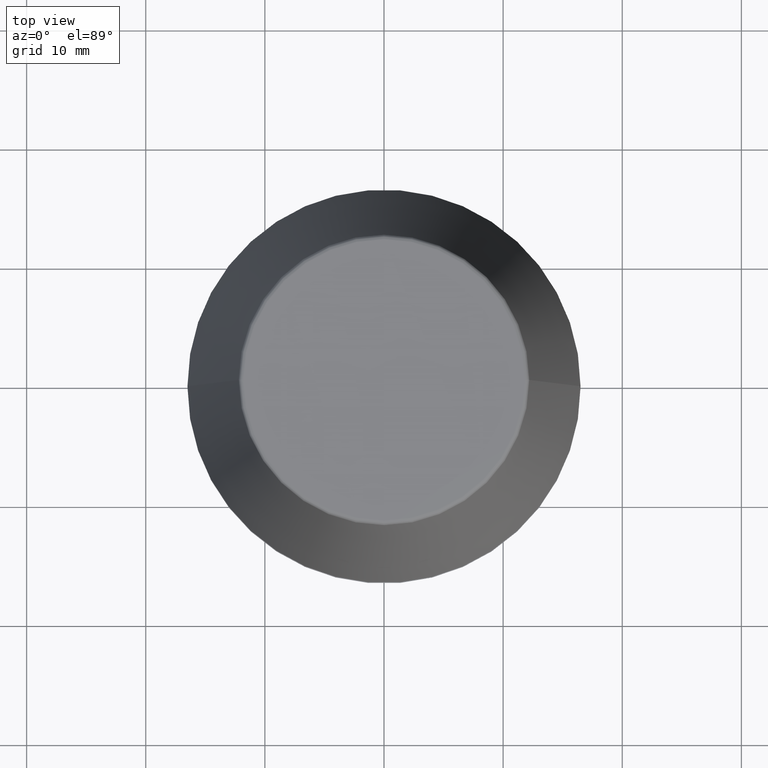
[diagram: clean part render]
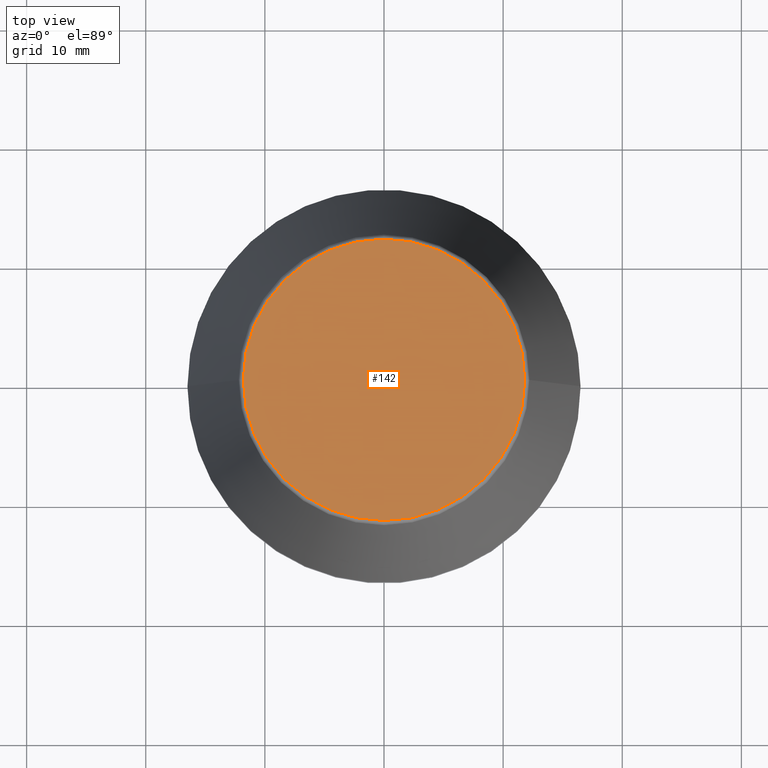
[diagram: same view with one face highlighted and labeled with its STEP entity id]
A machine part, top view. The second image highlights one B-rep face of the part: STEP entity #142.
In plain terms, the highlighted planar face has unit normal (0, 0, -1).
Its self-contained STEP definition (entity closure, byte-faithful):
#4 = DIRECTION ( 'NONE',  ( -1.000000000000000000, 0.0000000000000000000, -0.0000000000000000000 ) ) ;
#7 = CIRCLE ( 'NONE', #129, 11.80989888411031400 ) ;
#8 = CARTESIAN_POINT ( 'NONE',  ( -11.80989888411031400, 1.470550059081603400E-015, 40.00000000000000700 ) ) ;
#15 = EDGE_CURVE ( 'NONE', #84, #336, #85, .T. ) ;
#84 = VERTEX_POINT ( 'NONE', #8 ) ;
#85 = CIRCLE ( 'NONE', #170, 11.80989888411031400 ) ;
#91 = FACE_OUTER_BOUND ( 'NONE', #188, .T. ) ;
#114 = CARTESIAN_POINT ( 'NONE',  ( 11.80989888411031400, 0.0000000000000000000, 40.00000000000000700 ) ) ;
#129 = AXIS2_PLACEMENT_3D ( 'NONE', #335, #283, #326 ) ;
#142 = ADVANCED_FACE ( 'NONE', ( #91 ), #338, .F. ) ;
#144 = AXIS2_PLACEMENT_3D ( 'NONE', #301, #219, #4 ) ;
#170 = AXIS2_PLACEMENT_3D ( 'NONE', #382, #260, #317 ) ;
#188 = EDGE_LOOP ( 'NONE', ( #383, #318 ) ) ;
#219 = DIRECTION ( 'NONE',  ( 0.0000000000000000000, 0.0000000000000000000, -1.000000000000000000 ) ) ;
#234 = EDGE_CURVE ( 'NONE', #336, #84, #7, .T. ) ;
#260 = DIRECTION ( 'NONE',  ( -0.0000000000000000000, -0.0000000000000000000, 1.000000000000000000 ) ) ;
#283 = DIRECTION ( 'NONE',  ( -0.0000000000000000000, -0.0000000000000000000, 1.000000000000000000 ) ) ;
#301 = CARTESIAN_POINT ( 'NONE',  ( 0.0000000000000000000, 11.80989888411031400, 40.00000000000000700 ) ) ;
#317 = DIRECTION ( 'NONE',  ( 1.000000000000000000, 0.0000000000000000000, 0.0000000000000000000 ) ) ;
#318 = ORIENTED_EDGE ( 'NONE', *, *, #15, .T. ) ;
#326 = DIRECTION ( 'NONE',  ( 1.000000000000000000, 0.0000000000000000000, 0.0000000000000000000 ) ) ;
#335 = CARTESIAN_POINT ( 'NONE',  ( 0.0000000000000000000, 0.0000000000000000000, 40.00000000000000700 ) ) ;
#336 = VERTEX_POINT ( 'NONE', #114 ) ;
#338 = PLANE ( 'NONE',  #144 ) ;
#382 = CARTESIAN_POINT ( 'NONE',  ( 0.0000000000000000000, 0.0000000000000000000, 40.00000000000000700 ) ) ;
#383 = ORIENTED_EDGE ( 'NONE', *, *, #234, .T. ) ;